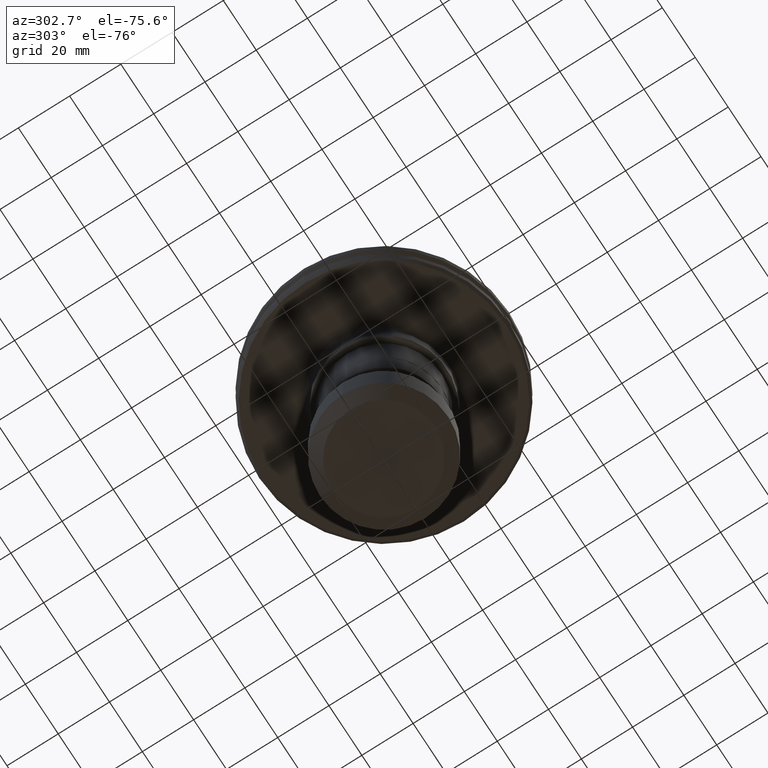
[diagram: clean part render]
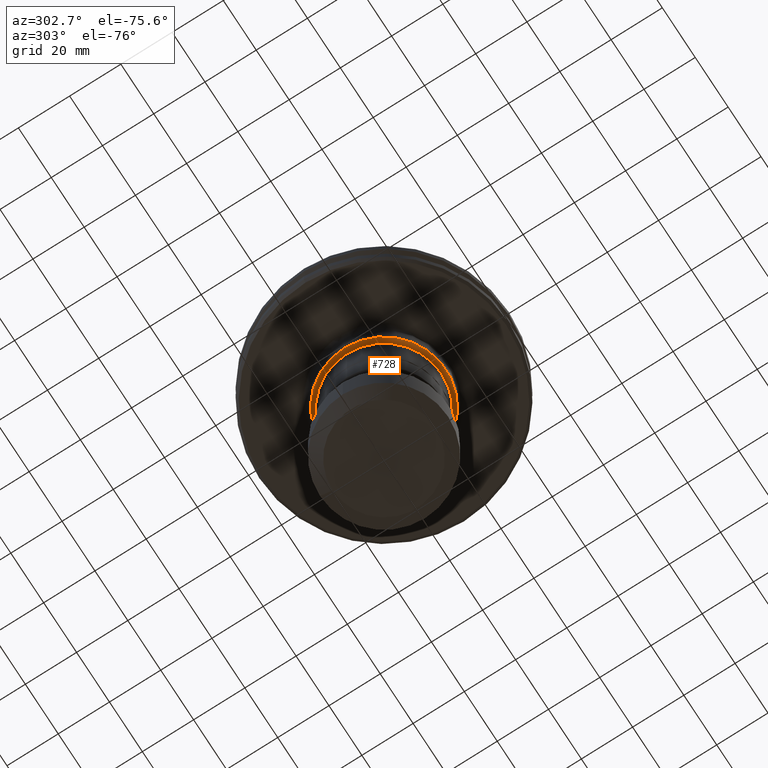
[diagram: same view with one face highlighted and labeled with its STEP entity id]
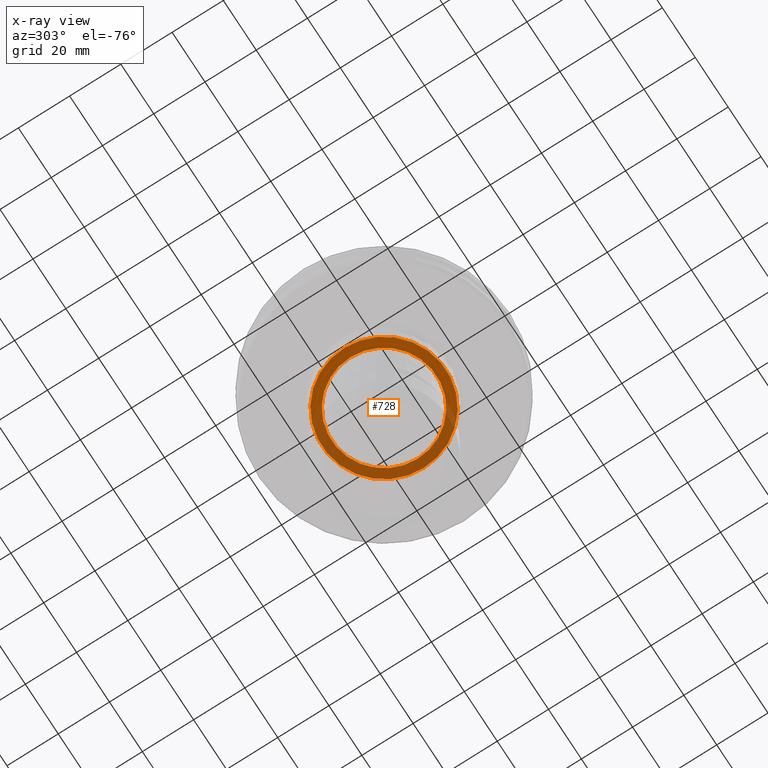
[diagram: x-ray of the same camera — body ghosted, the highlighted face saturated]
A machine part, auxiliary view. The second image highlights one B-rep face of the part: STEP entity #728.
The next image is the same camera in x-ray: the body ghosted, the highlighted face saturated — about 48% of this face is hidden behind the body in this view.
In plain terms, the highlighted planar face has unit normal (0, 0, -1).
Its self-contained STEP definition (entity closure, byte-faithful):
#4 = AXIS2_PLACEMENT_3D ( 'NONE', #1584, #1400, #282 ) ;
#50 = CIRCLE ( 'NONE', #1978, 20.44999999999999900 ) ;
#102 = CARTESIAN_POINT ( 'NONE',  ( -24.19999999999999900, 2.982014955923805000E-015, -28.40000000000001600 ) ) ;
#282 = DIRECTION ( 'NONE',  ( 1.000000000000000000, 0.0000000000000000000, 0.0000000000000000000 ) ) ;
#318 = AXIS2_PLACEMENT_3D ( 'NONE', #1347, #422, #1543 ) ;
#416 = EDGE_CURVE ( 'NONE', #1592, #1720, #50, .T. ) ;
#419 = FACE_BOUND ( 'NONE', #2212, .T. ) ;
#422 = DIRECTION ( 'NONE',  ( 0.0000000000000000000, -0.0000000000000000000, 1.000000000000000000 ) ) ;
#450 = CIRCLE ( 'NONE', #4, 24.19999999999999900 ) ;
#502 = EDGE_CURVE ( 'NONE', #2125, #1186, #1259, .T. ) ;
#679 = ORIENTED_EDGE ( 'NONE', *, *, #502, .F. ) ;
#728 = ADVANCED_FACE ( 'NONE', ( #1408, #419 ), #827, .T. ) ;
#733 = DIRECTION ( 'NONE',  ( 0.0000000000000000000, 0.0000000000000000000, 1.000000000000000000 ) ) ;
#821 = CARTESIAN_POINT ( 'NONE',  ( 0.0000000000000000000, -24.19999999999999900, -28.40000000000001300 ) ) ;
#827 = PLANE ( 'NONE',  #1612 ) ;
#1129 = EDGE_CURVE ( 'NONE', #1186, #2125, #450, .T. ) ;
#1186 = VERTEX_POINT ( 'NONE', #1405 ) ;
#1259 = CIRCLE ( 'NONE', #318, 24.19999999999999900 ) ;
#1309 = DIRECTION ( 'NONE',  ( 0.0000000000000000000, 0.0000000000000000000, -1.000000000000000000 ) ) ;
#1347 = CARTESIAN_POINT ( 'NONE',  ( 0.0000000000000000000, 0.0000000000000000000, -28.40000000000001600 ) ) ;
#1382 = CIRCLE ( 'NONE', #1817, 20.44999999999999900 ) ;
#1387 = ORIENTED_EDGE ( 'NONE', *, *, #2096, .T. ) ;
#1400 = DIRECTION ( 'NONE',  ( 0.0000000000000000000, -0.0000000000000000000, 1.000000000000000000 ) ) ;
#1405 = CARTESIAN_POINT ( 'NONE',  ( 24.19999999999999900, 0.0000000000000000000, -28.40000000000001600 ) ) ;
#1408 = FACE_OUTER_BOUND ( 'NONE', #2381, .T. ) ;
#1498 = DIRECTION ( 'NONE',  ( -1.000000000000000000, 0.0000000000000000000, -0.0000000000000000000 ) ) ;
#1543 = DIRECTION ( 'NONE',  ( 1.000000000000000000, 0.0000000000000000000, 0.0000000000000000000 ) ) ;
#1584 = CARTESIAN_POINT ( 'NONE',  ( 0.0000000000000000000, 0.0000000000000000000, -28.40000000000001600 ) ) ;
#1592 = VERTEX_POINT ( 'NONE', #2105 ) ;
#1612 = AXIS2_PLACEMENT_3D ( 'NONE', #821, #1309, #1498 ) ;
#1623 = ORIENTED_EDGE ( 'NONE', *, *, #416, .T. ) ;
#1720 = VERTEX_POINT ( 'NONE', #1943 ) ;
#1801 = DIRECTION ( 'NONE',  ( 0.0000000000000000000, 0.0000000000000000000, 1.000000000000000000 ) ) ;
#1817 = AXIS2_PLACEMENT_3D ( 'NONE', #2113, #1801, #1992 ) ;
#1943 = CARTESIAN_POINT ( 'NONE',  ( 20.44999999999999900, 0.0000000000000000000, -28.40000000000001300 ) ) ;
#1978 = AXIS2_PLACEMENT_3D ( 'NONE', #2038, #733, #2219 ) ;
#1992 = DIRECTION ( 'NONE',  ( 1.000000000000000000, 0.0000000000000000000, 0.0000000000000000000 ) ) ;
#2038 = CARTESIAN_POINT ( 'NONE',  ( 0.0000000000000000000, 0.0000000000000000000, -28.40000000000001300 ) ) ;
#2096 = EDGE_CURVE ( 'NONE', #1720, #1592, #1382, .T. ) ;
#2105 = CARTESIAN_POINT ( 'NONE',  ( -20.44999999999999900, 2.504402704256337000E-015, -28.40000000000001300 ) ) ;
#2113 = CARTESIAN_POINT ( 'NONE',  ( 0.0000000000000000000, 0.0000000000000000000, -28.40000000000001300 ) ) ;
#2125 = VERTEX_POINT ( 'NONE', #102 ) ;
#2212 = EDGE_LOOP ( 'NONE', ( #1387, #1623 ) ) ;
#2219 = DIRECTION ( 'NONE',  ( 1.000000000000000000, 0.0000000000000000000, 0.0000000000000000000 ) ) ;
#2381 = EDGE_LOOP ( 'NONE', ( #2415, #679 ) ) ;
#2415 = ORIENTED_EDGE ( 'NONE', *, *, #1129, .F. ) ;